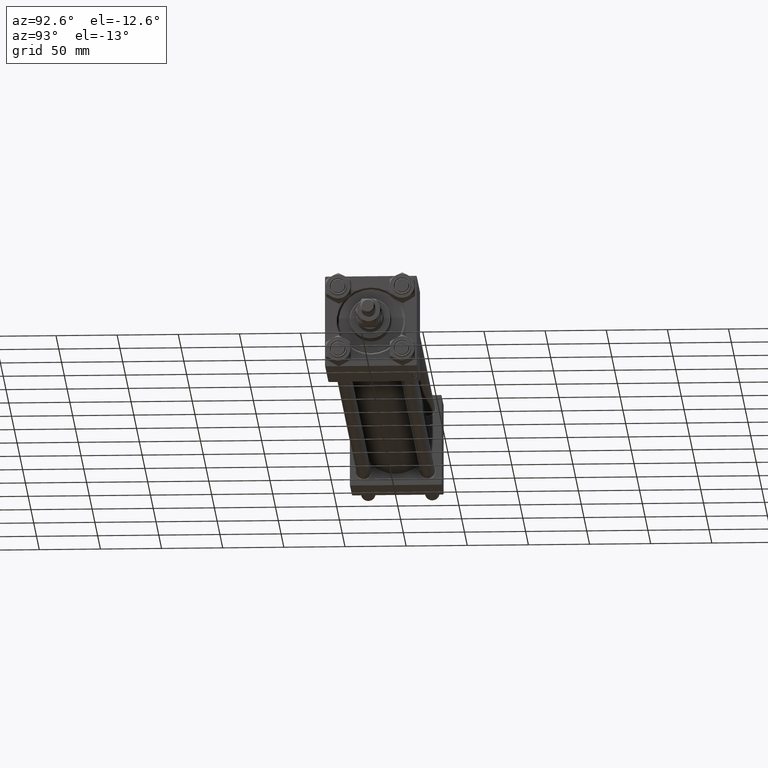
[diagram: clean part render]
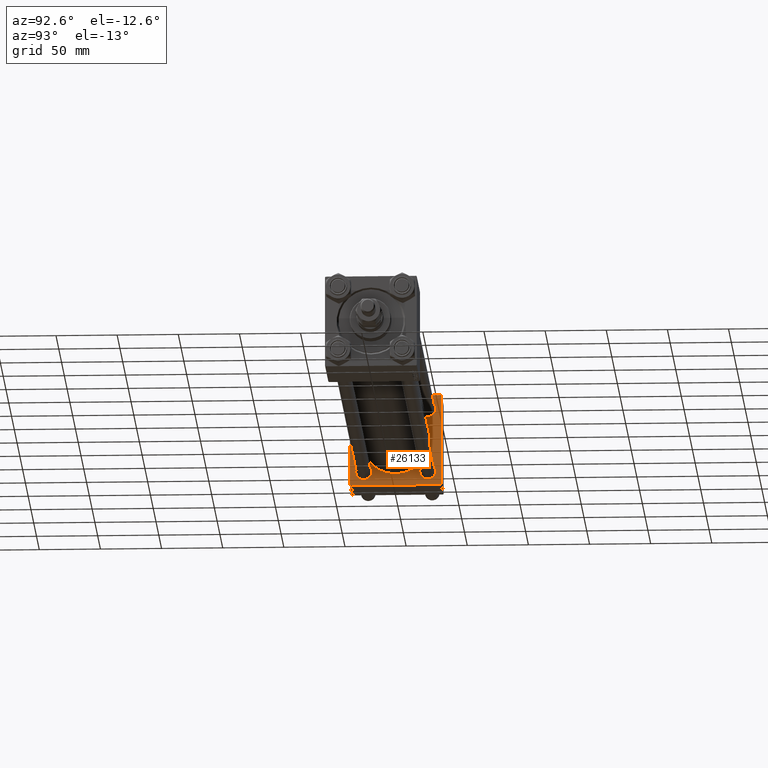
[diagram: same view with one face highlighted and labeled with its STEP entity id]
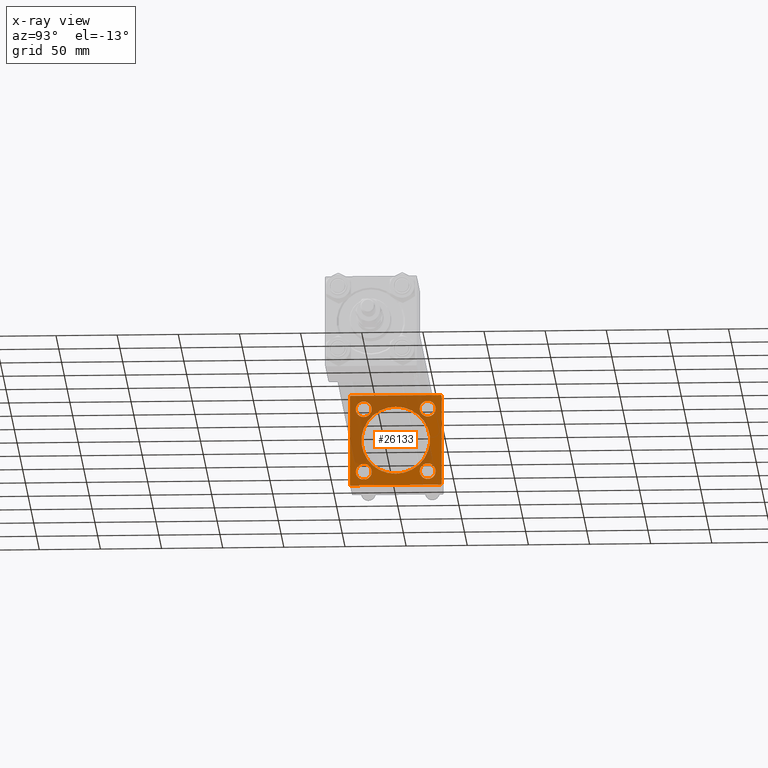
[diagram: x-ray of the same camera — body ghosted, the highlighted face saturated]
A machine part, auxiliary view. The second image highlights one B-rep face of the part: STEP entity #26133.
The next image is the same camera in x-ray: the body ghosted, the highlighted face saturated — about 47% of this face is hidden behind the body in this view.
In plain terms, the highlighted planar face has unit normal (-1, 0, 0).
Its self-contained STEP definition (entity closure, byte-faithful):
#993 = AXIS2_PLACEMENT_3D ( 'NONE', #18824, #46222, #18212 ) ;
#1990 = DIRECTION ( 'NONE',  ( 0.000000000000000000, 0.000000000000000000, -1.000000000000000000 ) ) ;
#2492 = DIRECTION ( 'NONE',  ( -1.000000000000000000, 0.000000000000000000, -0.000000000000000000 ) ) ;
#2752 = LINE ( 'NONE', #3268, #7405 ) ;
#2760 = DIRECTION ( 'NONE',  ( 0.000000000000000000, 0.000000000000000000, 1.000000000000000000 ) ) ;
#3134 = DIRECTION ( 'NONE',  ( 0.000000000000000000, -1.000000000000000000, -9.251858538542972814E-17 ) ) ;
#3268 = CARTESIAN_POINT ( 'NONE',  ( 37.00000000000000000, 37.49999999999999289, 37.50000000000000000 ) ) ;
#3442 = EDGE_LOOP ( 'NONE', ( #35060, #15597 ) ) ;
#3761 = CARTESIAN_POINT ( 'NONE',  ( 37.00000000000000000, 26.14999999999999858, 26.15000000000000213 ) ) ;
#3992 = CARTESIAN_POINT ( 'NONE',  ( 37.00000000000000000, -26.14999999999999147, 26.15000000000000924 ) ) ;
#4108 = CARTESIAN_POINT ( 'NONE',  ( 37.00000000000000000, 26.14999999999999858, 19.65000000000005187 ) ) ;
#4288 = ORIENTED_EDGE ( 'NONE', *, *, #6134, .T. ) ;
#4313 = EDGE_LOOP ( 'NONE', ( #46704, #23235, #44564, #33592, #27251, #43994, #40542, #35130 ) ) ;
#4997 = CARTESIAN_POINT ( 'NONE',  ( 37.00000000000000000, 37.49999999999999289, -36.99999999999998579 ) ) ;
#5003 = AXIS2_PLACEMENT_3D ( 'NONE', #23009, #11351, #43241 ) ;
#5215 = EDGE_CURVE ( 'NONE', #15798, #34319, #36484, .T. ) ;
#5307 = ORIENTED_EDGE ( 'NONE', *, *, #22909, .T. ) ;
#5826 = DIRECTION ( 'NONE',  ( 0.000000000000000000, 9.251858538542971581E-17, -1.000000000000000000 ) ) ;
#5890 = CARTESIAN_POINT ( 'NONE',  ( 37.00000000000000000, 26.14999999999999858, 32.64999999999995595 ) ) ;
#5975 = AXIS2_PLACEMENT_3D ( 'NONE', #3761, #35411, #12067 ) ;
#6091 = EDGE_CURVE ( 'NONE', #16609, #23714, #45565, .T. ) ;
#6134 = EDGE_CURVE ( 'NONE', #43218, #11017, #38174, .T. ) ;
#6193 = EDGE_CURVE ( 'NONE', #34319, #15798, #17475, .T. ) ;
#6272 = CARTESIAN_POINT ( 'NONE',  ( 37.00000000000000000, -26.14999999999999147, -32.65000000000001279 ) ) ;
#6416 = EDGE_CURVE ( 'NONE', #50683, #23714, #22865, .T. ) ;
#6585 = CIRCLE ( 'NONE', #30631, 6.499999999999946709 ) ;
#7014 = CARTESIAN_POINT ( 'NONE',  ( 37.00000000000000000, 37.49999999999999289, -37.50000000000000000 ) ) ;
#7363 = DIRECTION ( 'NONE',  ( 0.000000000000000000, 0.000000000000000000, 1.000000000000000000 ) ) ;
#7405 = VECTOR ( 'NONE', #27850, 1000.000000000000000 ) ;
#7756 = VERTEX_POINT ( 'NONE', #9661 ) ;
#7840 = VERTEX_POINT ( 'NONE', #6272 ) ;
#8137 = DIRECTION ( 'NONE',  ( 0.000000000000000000, 0.000000000000000000, 1.000000000000000000 ) ) ;
#9306 = CIRCLE ( 'NONE', #5975, 6.499999999999946709 ) ;
#9661 = CARTESIAN_POINT ( 'NONE',  ( 36.99999999999997868, 3.429011037612588487E-15, -28.00000000000000000 ) ) ;
#9671 = EDGE_CURVE ( 'NONE', #12796, #23044, #23364, .T. ) ;
#10505 = CARTESIAN_POINT ( 'NONE',  ( 37.00000000000000000, 36.99999999999999289, 37.50000000000000000 ) ) ;
#10645 = VERTEX_POINT ( 'NONE', #29004 ) ;
#10850 = AXIS2_PLACEMENT_3D ( 'NONE', #14448, #2492, #2760 ) ;
#11017 = VERTEX_POINT ( 'NONE', #31519 ) ;
#11351 = DIRECTION ( 'NONE',  ( -1.000000000000000000, 0.000000000000000000, -0.000000000000000000 ) ) ;
#12067 = DIRECTION ( 'NONE',  ( 0.000000000000000000, 0.000000000000000000, 1.000000000000000000 ) ) ;
#12130 = CIRCLE ( 'NONE', #50206, 28.00000000000000000 ) ;
#12170 = ORIENTED_EDGE ( 'NONE', *, *, #24705, .T. ) ;
#12320 = DIRECTION ( 'NONE',  ( -1.000000000000000000, 0.000000000000000000, -0.000000000000000000 ) ) ;
#12796 = VERTEX_POINT ( 'NONE', #5890 ) ;
#12991 = EDGE_CURVE ( 'NONE', #31718, #31759, #25805, .T. ) ;
#13085 = EDGE_CURVE ( 'NONE', #7840, #18740, #18394, .T. ) ;
#13819 = EDGE_CURVE ( 'NONE', #23044, #12796, #9306, .T. ) ;
#14321 = CARTESIAN_POINT ( 'NONE',  ( 37.00000000000000000, 37.49999999999999289, -36.99999999999998579 ) ) ;
#14448 = CARTESIAN_POINT ( 'NONE',  ( 37.00000000000000000, 26.14999999999999858, -26.15000000000000213 ) ) ;
#14768 = DIRECTION ( 'NONE',  ( -1.000000000000000000, 0.000000000000000000, -0.000000000000000000 ) ) ;
#15009 = AXIS2_PLACEMENT_3D ( 'NONE', #3992, #42456, #8137 ) ;
#15293 = DIRECTION ( 'NONE',  ( 0.000000000000000000, 0.000000000000000000, 1.000000000000000000 ) ) ;
#15597 = ORIENTED_EDGE ( 'NONE', *, *, #9671, .T. ) ;
#15798 = VERTEX_POINT ( 'NONE', #40572 ) ;
#16037 = DIRECTION ( 'NONE',  ( -0.000000000000000000, -0.7071067811865474617, -0.7071067811865474617 ) ) ;
#16214 = PLANE ( 'NONE',  #31574 ) ;
#16609 = VERTEX_POINT ( 'NONE', #23034 ) ;
#16748 = ORIENTED_EDGE ( 'NONE', *, *, #51158, .F. ) ;
#17215 = FACE_BOUND ( 'NONE', #30786, .T. ) ;
#17475 = CIRCLE ( 'NONE', #15009, 6.500000000000008882 ) ;
#18132 = CARTESIAN_POINT ( 'NONE',  ( 37.00000000000000000, 26.14999999999999858, -32.64999999999994884 ) ) ;
#18140 = ORIENTED_EDGE ( 'NONE', *, *, #42137, .F. ) ;
#18212 = DIRECTION ( 'NONE',  ( 0.000000000000000000, 0.000000000000000000, 1.000000000000000000 ) ) ;
#18394 = CIRCLE ( 'NONE', #35811, 6.500000000000002665 ) ;
#18486 = VECTOR ( 'NONE', #16037, 1000.000000000000114 ) ;
#18740 = VERTEX_POINT ( 'NONE', #49876 ) ;
#18795 = AXIS2_PLACEMENT_3D ( 'NONE', #41275, #40512, #20803 ) ;
#18824 = CARTESIAN_POINT ( 'NONE',  ( 37.00000000000000000, 26.14999999999999858, 26.15000000000000213 ) ) ;
#19319 = LINE ( 'NONE', #23719, #35418 ) ;
#19660 = LINE ( 'NONE', #28715, #18486 ) ;
#20439 = VERTEX_POINT ( 'NONE', #38493 ) ;
#20734 = AXIS2_PLACEMENT_3D ( 'NONE', #43918, #35119, #31741 ) ;
#20803 = DIRECTION ( 'NONE',  ( 0.000000000000000000, 0.000000000000000000, 1.000000000000000000 ) ) ;
#21102 = FACE_BOUND ( 'NONE', #50741, .T. ) ;
#21662 = EDGE_CURVE ( 'NONE', #50683, #20439, #46716, .T. ) ;
#22180 = EDGE_CURVE ( 'NONE', #29682, #38175, #2752, .T. ) ;
#22433 = VECTOR ( 'NONE', #1990, 1000.000000000000000 ) ;
#22517 = CARTESIAN_POINT ( 'NONE',  ( 37.00000000000000000, 36.99999999999999289, 37.50000000000000000 ) ) ;
#22865 = LINE ( 'NONE', #14321, #42362 ) ;
#22909 = EDGE_CURVE ( 'NONE', #11017, #43218, #6585, .T. ) ;
#23009 = CARTESIAN_POINT ( 'NONE',  ( 37.00000000000000000, -26.14999999999999147, -26.15000000000000924 ) ) ;
#23034 = CARTESIAN_POINT ( 'NONE',  ( 37.00000000000000000, 37.49999999999999289, 37.00000000000000000 ) ) ;
#23044 = VERTEX_POINT ( 'NONE', #4108 ) ;
#23235 = ORIENTED_EDGE ( 'NONE', *, *, #6416, .T. ) ;
#23364 = CIRCLE ( 'NONE', #993, 6.499999999999946709 ) ;
#23714 = VERTEX_POINT ( 'NONE', #4997 ) ;
#23719 = CARTESIAN_POINT ( 'NONE',  ( 37.00000000000000000, -37.00000000000002132, -37.50000000000000711 ) ) ;
#24705 = EDGE_CURVE ( 'NONE', #18740, #7840, #25738, .T. ) ;
#25247 = FACE_BOUND ( 'NONE', #36150, .T. ) ;
#25348 = CARTESIAN_POINT ( 'NONE',  ( 37.00000000000000000, 37.49999999999999289, 37.50000000000000000 ) ) ;
#25480 = EDGE_LOOP ( 'NONE', ( #4288, #5307 ) ) ;
#25554 = CARTESIAN_POINT ( 'NONE',  ( 37.00000000000000000, -37.50000000000000711, 37.49999999999999289 ) ) ;
#25738 = CIRCLE ( 'NONE', #5003, 6.500000000000002665 ) ;
#25805 = LINE ( 'NONE', #25554, #40759 ) ;
#26133 = ADVANCED_FACE ( 'NONE', ( #25247, #32779, #21102, #48601, #17215, #37172 ), #16214, .F. ) ;
#26757 = DIRECTION ( 'NONE',  ( -0.000000000000000000, 0.7071067811865474617, 0.7071067811865474617 ) ) ;
#27189 = DIRECTION ( 'NONE',  ( 0.000000000000000000, -0.7071067811865474617, 0.7071067811865474617 ) ) ;
#27251 = ORIENTED_EDGE ( 'NONE', *, *, #22180, .T. ) ;
#27850 = DIRECTION ( 'NONE',  ( 0.000000000000000000, -1.000000000000000000, -9.251858538542971581E-17 ) ) ;
#28134 = DIRECTION ( 'NONE',  ( -0.000000000000000000, 0.000000000000000000, 1.000000000000000000 ) ) ;
#28715 = CARTESIAN_POINT ( 'NONE',  ( 37.00000000000000000, -37.50000000000000711, 36.99999999999999289 ) ) ;
#29004 = CARTESIAN_POINT ( 'NONE',  ( 36.99999999999997868, 0.000000000000000000, 28.00000000000000000 ) ) ;
#29166 = DIRECTION ( 'NONE',  ( 0.000000000000000000, 0.000000000000000000, 1.000000000000000000 ) ) ;
#29609 = VECTOR ( 'NONE', #27189, 1000.000000000000114 ) ;
#29682 = VERTEX_POINT ( 'NONE', #10505 ) ;
#30631 = AXIS2_PLACEMENT_3D ( 'NONE', #51329, #14768, #15293 ) ;
#30786 = EDGE_LOOP ( 'NONE', ( #16748, #18140 ) ) ;
#30826 = LINE ( 'NONE', #22517, #29609 ) ;
#31347 = EDGE_CURVE ( 'NONE', #38175, #31718, #19660, .T. ) ;
#31519 = CARTESIAN_POINT ( 'NONE',  ( 37.00000000000000000, 26.14999999999999858, -19.65000000000005542 ) ) ;
#31574 = AXIS2_PLACEMENT_3D ( 'NONE', #47845, #12320, #28134 ) ;
#31718 = VERTEX_POINT ( 'NONE', #42170 ) ;
#31741 = DIRECTION ( 'NONE',  ( 0.000000000000000000, 0.000000000000000000, 1.000000000000000000 ) ) ;
#31759 = VERTEX_POINT ( 'NONE', #46311 ) ;
#32779 = FACE_BOUND ( 'NONE', #25480, .T. ) ;
#32959 = CARTESIAN_POINT ( 'NONE',  ( 37.00000000000000000, 36.99999999999997868, -37.50000000000000000 ) ) ;
#33592 = ORIENTED_EDGE ( 'NONE', *, *, #45973, .T. ) ;
#34319 = VERTEX_POINT ( 'NONE', #47179 ) ;
#35060 = ORIENTED_EDGE ( 'NONE', *, *, #13819, .T. ) ;
#35119 = DIRECTION ( 'NONE',  ( -1.000000000000000000, 0.000000000000000000, -0.000000000000000000 ) ) ;
#35130 = ORIENTED_EDGE ( 'NONE', *, *, #44627, .T. ) ;
#35142 = DIRECTION ( 'NONE',  ( 0.000000000000000000, 0.7071067811865524577, -0.7071067811865426878 ) ) ;
#35411 = DIRECTION ( 'NONE',  ( -1.000000000000000000, 0.000000000000000000, -0.000000000000000000 ) ) ;
#35418 = VECTOR ( 'NONE', #35142, 1000.000000000000000 ) ;
#35811 = AXIS2_PLACEMENT_3D ( 'NONE', #47326, #42923, #7363 ) ;
#36150 = EDGE_LOOP ( 'NONE', ( #40925, #12170 ) ) ;
#36201 = CIRCLE ( 'NONE', #18795, 28.00000000000000000 ) ;
#36484 = CIRCLE ( 'NONE', #20734, 6.500000000000008882 ) ;
#37172 = FACE_OUTER_BOUND ( 'NONE', #4313, .T. ) ;
#38174 = CIRCLE ( 'NONE', #10850, 6.499999999999946709 ) ;
#38175 = VERTEX_POINT ( 'NONE', #38951 ) ;
#38493 = CARTESIAN_POINT ( 'NONE',  ( 37.00000000000000000, -37.00000000000002132, -37.50000000000000711 ) ) ;
#38951 = CARTESIAN_POINT ( 'NONE',  ( 37.00000000000000000, -37.00000000000000711, 37.49999999999999289 ) ) ;
#39388 = DIRECTION ( 'NONE',  ( 1.000000000000000000, -0.000000000000000000, 0.000000000000000000 ) ) ;
#40512 = DIRECTION ( 'NONE',  ( 1.000000000000000000, -0.000000000000000000, 0.000000000000000000 ) ) ;
#40542 = ORIENTED_EDGE ( 'NONE', *, *, #12991, .T. ) ;
#40572 = CARTESIAN_POINT ( 'NONE',  ( 37.00000000000000000, -26.14999999999999147, 32.65000000000001990 ) ) ;
#40759 = VECTOR ( 'NONE', #5826, 1000.000000000000000 ) ;
#40925 = ORIENTED_EDGE ( 'NONE', *, *, #13085, .T. ) ;
#41275 = CARTESIAN_POINT ( 'NONE',  ( 36.99999999999997868, 0.000000000000000000, 0.000000000000000000 ) ) ;
#41481 = VECTOR ( 'NONE', #3134, 1000.000000000000000 ) ;
#42137 = EDGE_CURVE ( 'NONE', #7756, #10645, #12130, .T. ) ;
#42170 = CARTESIAN_POINT ( 'NONE',  ( 37.00000000000000000, -37.50000000000000711, 36.99999999999999289 ) ) ;
#42362 = VECTOR ( 'NONE', #26757, 1000.000000000000114 ) ;
#42456 = DIRECTION ( 'NONE',  ( -1.000000000000000000, 0.000000000000000000, -0.000000000000000000 ) ) ;
#42923 = DIRECTION ( 'NONE',  ( -1.000000000000000000, 0.000000000000000000, -0.000000000000000000 ) ) ;
#43218 = VERTEX_POINT ( 'NONE', #18132 ) ;
#43241 = DIRECTION ( 'NONE',  ( 0.000000000000000000, 0.000000000000000000, 1.000000000000000000 ) ) ;
#43918 = CARTESIAN_POINT ( 'NONE',  ( 37.00000000000000000, -26.14999999999999147, 26.15000000000000924 ) ) ;
#43994 = ORIENTED_EDGE ( 'NONE', *, *, #31347, .T. ) ;
#44564 = ORIENTED_EDGE ( 'NONE', *, *, #6091, .F. ) ;
#44627 = EDGE_CURVE ( 'NONE', #31759, #20439, #19319, .T. ) ;
#45565 = LINE ( 'NONE', #25348, #22433 ) ;
#45633 = ORIENTED_EDGE ( 'NONE', *, *, #6193, .T. ) ;
#45973 = EDGE_CURVE ( 'NONE', #16609, #29682, #30826, .T. ) ;
#46222 = DIRECTION ( 'NONE',  ( -1.000000000000000000, 0.000000000000000000, -0.000000000000000000 ) ) ;
#46311 = CARTESIAN_POINT ( 'NONE',  ( 37.00000000000000000, -37.50000000000000000, -37.00000000000003553 ) ) ;
#46704 = ORIENTED_EDGE ( 'NONE', *, *, #21662, .F. ) ;
#46716 = LINE ( 'NONE', #7014, #41481 ) ;
#47179 = CARTESIAN_POINT ( 'NONE',  ( 37.00000000000000000, -26.14999999999999147, 19.65000000000000213 ) ) ;
#47326 = CARTESIAN_POINT ( 'NONE',  ( 37.00000000000000000, -26.14999999999999147, -26.15000000000000924 ) ) ;
#47845 = CARTESIAN_POINT ( 'NONE',  ( 37.00000000000000000, 0.000000000000000000, 0.000000000000000000 ) ) ;
#48601 = FACE_BOUND ( 'NONE', #3442, .T. ) ;
#48884 = CARTESIAN_POINT ( 'NONE',  ( 36.99999999999997868, 0.000000000000000000, 0.000000000000000000 ) ) ;
#49310 = ORIENTED_EDGE ( 'NONE', *, *, #5215, .T. ) ;
#49876 = CARTESIAN_POINT ( 'NONE',  ( 37.00000000000000000, -26.14999999999999147, -19.65000000000000924 ) ) ;
#50206 = AXIS2_PLACEMENT_3D ( 'NONE', #48884, #39388, #29166 ) ;
#50683 = VERTEX_POINT ( 'NONE', #32959 ) ;
#50741 = EDGE_LOOP ( 'NONE', ( #45633, #49310 ) ) ;
#51158 = EDGE_CURVE ( 'NONE', #10645, #7756, #36201, .T. ) ;
#51329 = CARTESIAN_POINT ( 'NONE',  ( 37.00000000000000000, 26.14999999999999858, -26.15000000000000213 ) ) ;